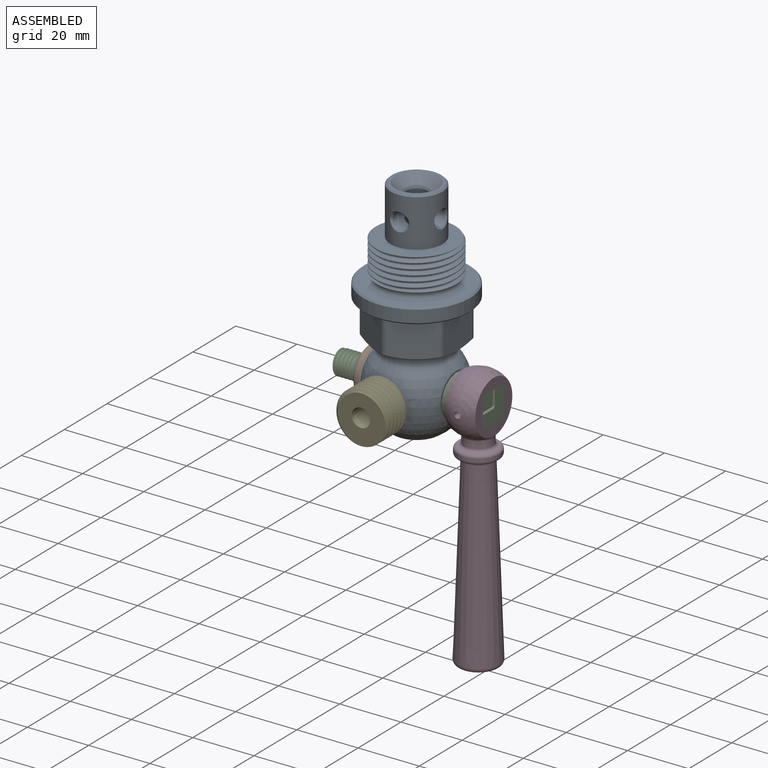
[diagram: assembled view]
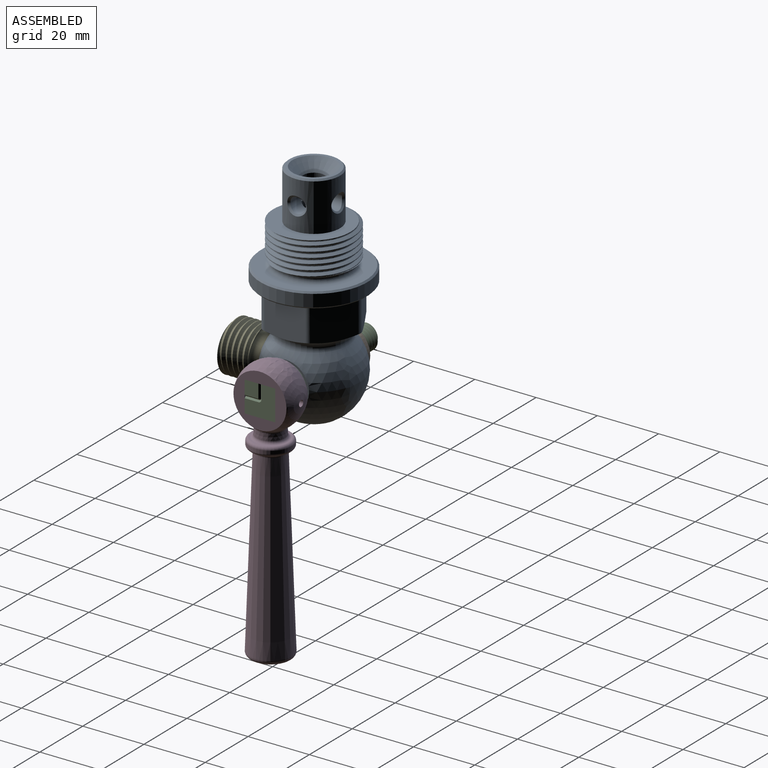
[diagram: assembled view, second angle]
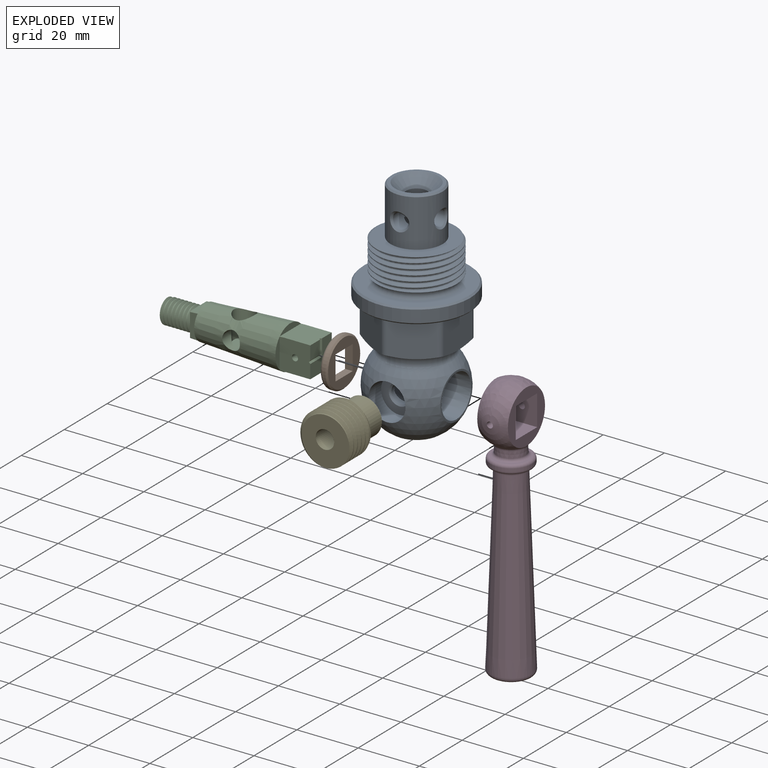
[diagram: exploded view]
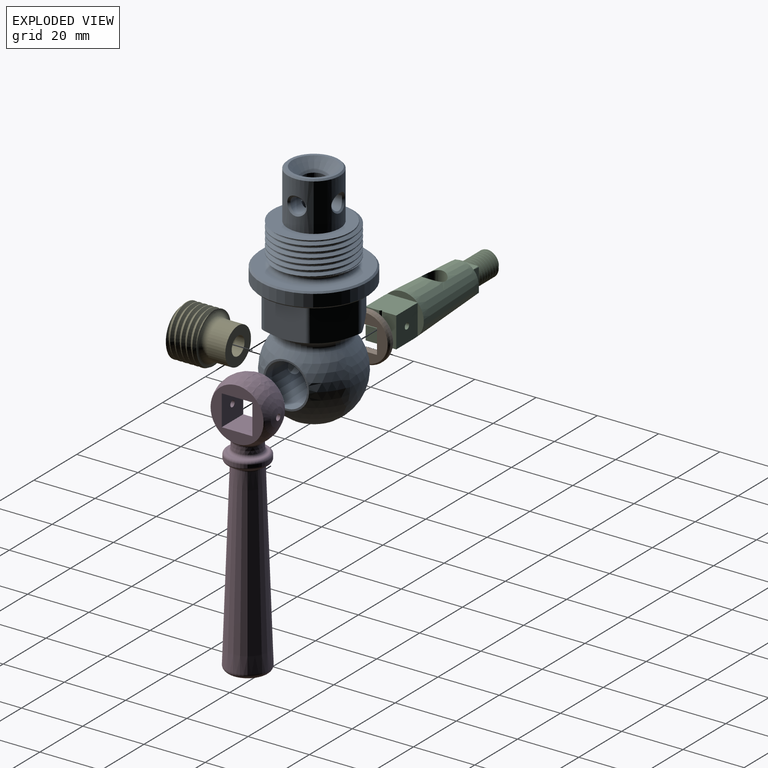
[diagram: exploded view, second angle]
ASSEMBLY  parts=5 mates=5
PART A: 59 faces, bbox 35.8x35.8x75.4 mm
  f0: cylinder r=3.5mm len=45.2mm, axis (0,0,1), area 990.9mm2, adj f5,f40,f41,f42,f43
  f1: cylinder r=3.5mm len=7mm, axis (0,0,1), area 75.8mm2, adj f40,f41,f42,f43,f44
  f2: cylinder r=8.5mm len=17mm, axis (0,0,1), area 705.5mm2, adj f8,f45,f46,f47,f48,f49
  f3: cylinder r=3mm len=6mm, axis (0,1,0), area 32.3mm2, adj f5,f50
  f4: sphere r=15mm, area 1819.8mm2, adj f25,f36,f37,f38
  f5: cone r=5mm half-angle=2.9deg, axis (1,0,0), area 952.6mm2, adj f0,f3,f36,f37
  f6: cylinder r=13.15mm len=26.3mm, axis (0,0,1), area 116.7mm2, adj f8,f9,f27,f28
  f7: plane 16x16mm, normal (0,0,1), area 47.1mm2, adj f44,f45
  f8: plane 25.79x25.76mm, normal (0,0,1), area 270.7mm2, adj f2,f6,f26,f27,f28
  f9: torus R=13.15mm, axis (0,0,1), area 304.8mm2, adj f6,f10,f29
  f10: plane 34x34mm, normal (0,0,1), area 364.7mm2, adj f9,f52
  f11: cylinder r=17.5mm len=35mm, axis (0,0,1), area 439.8mm2, adj f51,f52
  f12: plane 34x34mm, normal (0,0,-1), area 277.9mm2, adj f13,f14,f15,f16,f17,f18,f51,f53
  f13: plane 12.77x12.27mm, normal (-0.5,-0.87,0), area 156.1mm2, adj f12,f20,f21,f32,f34,f53,f58
  f14: plane 12.77x12.27mm, normal (-0.5,0.87,0), area 156.1mm2, adj f12,f22,f23,f33,f35,f54,f55
  f15: plane 12.77x12.27mm, normal (0.5,0.87,0), area 156.1mm2, adj f12,f23,f24,f30,f35,f55,f56
  f16: plane 12.77x12.27mm, normal (0.5,-0.87,0), area 156.1mm2, adj f12,f19,f20,f31,f34,f57,f58
  f17: plane 14.05x12.77mm, normal (-1,0,0), area 156.1mm2, adj f12,f21,f22,f32,f33,f53,f54
  f18: plane 14.05x12.77mm, normal (1,0,0), area 156.1mm2, adj f12,f19,f24,f30,f31,f56,f57
  f19: plane 11.69x6.75mm, normal (0,0,-1), area 0.1mm2, adj f16,f18,f25,f31
  f20: plane 13.5x1.82mm, normal (0,0,-1), area 0.1mm2, adj f13,f16,f25,f34
  f21: plane 11.69x6.75mm, normal (0,0,-1), area 0.1mm2, adj f13,f17,f25,f32
  f22: plane 11.69x6.75mm, normal (0,0,-1), area 0.1mm2, adj f14,f17,f25,f33
  f23: plane 13.5x1.82mm, normal (0,0,-1), area 0.1mm2, adj f14,f15,f25,f35
  f24: plane 11.69x6.75mm, normal (0,0,-1), area 0.1mm2, adj f15,f18,f25,f30
  f25: torus R=13.5mm, axis (0,0,1), area 415.1mm2, adj f4,f19,f20,f21,f22,f23,f24
  f26: bspline ~28.1x24.34mm, area 223.7mm2, adj f8,f27,f28,f29
  f27: bspline ~30.37x26.3mm, area 522.5mm2, adj f6,f8,f26,f29
  f28: bspline ~30.37x26.3mm, area 522.2mm2, adj f6,f8,f26,f29
  f29: plane 26.84x26.84mm, normal (0,0,1), area 45.5mm2, adj f9,f26,f27,f28
  f30: cone r=15.59mm half-angle=64.3deg, axis (0,0,1), area 13.2mm2, adj f15,f18,f24,f56
  f31: cone r=15.59mm half-angle=64.3deg, axis (0,0,1), area 13.2mm2, adj f16,f18,f19,f57
  f32: cone r=15.59mm half-angle=64.3deg, axis (0,0,1), area 13.2mm2, adj f13,f17,f21,f53
  f33: cone r=15.59mm half-angle=64.3deg, axis (0,0,1), area 13.2mm2, adj f14,f17,f22,f54
  f34: cone r=15.59mm half-angle=64.3deg, axis (0,0,1), area 13.2mm2, adj f13,f16,f20,f58
  f35: cone r=15.59mm half-angle=64.3deg, axis (0,0,1), area 13.2mm2, adj f14,f15,f23,f55
  f36: plane 14.97x14.97mm, normal (1,0,0), area 26.4mm2, adj f4,f5
  f37: plane 14.97x14.97mm, normal (-1,0,0), area 77.4mm2, adj f4,f5
  f38: cylinder r=6mm len=12mm, axis (0,-1,0), area 216.6mm2, adj f4,f39
  f39: plane 12x12mm, normal (0,-1,0), area 74.6mm2, adj f38,f50
  f40: cylinder r=2.5mm len=5.53mm, axis (0,1,0), area 74.5mm2, adj f0,f1,f41,f42,f49
  f41: cylinder r=2.5mm len=5.53mm, axis (-1,0,0), area 74.5mm2, adj f0,f1,f40,f43,f48
  f42: cylinder r=2.5mm len=5.53mm, axis (-1,0,0), area 74.2mm2, adj f0,f1,f40,f43,f46
  f43: cylinder r=2.5mm len=5.53mm, axis (0,-1,0), area 74.5mm2, adj f0,f1,f41,f42,f47
  f44: cone r=3.5mm half-angle=45deg, axis (0,0,1), area 163.3mm2, adj f1,f7
  f45: cone r=8mm half-angle=45deg, axis (0,0,-1), area 36.7mm2, adj f2,f7
  f46: bspline ~6.38x6mm, area 13.7mm2, adj f2,f42
  f47: bspline ~6.38x6mm, area 13.7mm2, adj f2,f43
  f48: bspline ~6.38x6mm, area 13.7mm2, adj f2,f41
  f49: bspline ~6.38x6mm, area 13.7mm2, adj f2,f40
  f50: cone r=3mm half-angle=45deg, axis (0,-1,0), area 14.4mm2, adj f3,f39
  f51: cone r=17.5mm half-angle=45deg, axis (0,0,1), area 76.6mm2, adj f11,f12
  f52: cone r=17mm half-angle=45deg, axis (0,0,-1), area 76.6mm2, adj f10,f11
  f53: cylinder r=2mm len=11.26mm, axis (0,0,1), area 23.6mm2, adj f12,f13,f17,f32
  f54: cylinder r=2mm len=11.26mm, axis (0,0,1), area 23.6mm2, adj f12,f14,f17,f33
  f55: cylinder r=2mm len=11.26mm, axis (0,0,1), area 23.6mm2, adj f12,f14,f15,f35
  f56: cylinder r=2mm len=11.26mm, axis (0,0,1), area 23.6mm2, adj f12,f15,f18,f30
  f57: cylinder r=2mm len=11.26mm, axis (0,0,1), area 23.6mm2, adj f12,f16,f18,f31
  f58: cylinder r=2mm len=11.26mm, axis (0,0,1), area 23.6mm2, adj f12,f13,f16,f34
PART B: 9 faces, bbox 2.5x17.3x17.3 mm
  f0: plane 8x2.5mm, normal (0,1,0), area 20mm2, adj f1,f4,f5,f6
  f1: plane 8x2.5mm, normal (0,0,1), area 20mm2, adj f0,f2,f5,f6
  f2: plane 8x2.5mm, normal (0,-1,0), area 20mm2, adj f1,f4,f5,f6
  f3: cylinder r=8mm len=16mm, axis (1,0,0), area 50.3mm2, adj f7,f8
  f4: plane 8x2.5mm, normal (0,0,-1), area 20mm2, adj f0,f2,f5,f6
  f5: plane 14x14mm, normal (-1,0,0), area 89.9mm2, adj f0,f1,f2,f4,f8
  f6: plane 15x15mm, normal (1,0,0), area 112.7mm2, adj f0,f1,f2,f4,f7
  f7: cone r=8mm half-angle=45deg, axis (-1,0,0), area 34.4mm2, adj f3,f6
  f8: torus R=7mm, axis (-1,0,0), area 75.4mm2, adj f3,f5
PART C: 40 faces, bbox 50.9x14.5x14.5 mm
  f0: plane 10x10mm, normal (0,-1,0), area 96.5mm2, adj f1,f5,f16,f19,f21,f23,f33,f34
  f1: plane 10x10mm, normal (1,0,0), area 70mm2, adj f0,f19,f20,f21,f33,f35,f37
  f2: cylinder r=4mm len=10mm, axis (-1,0,0), area 53mm2, adj f6,f7,f31,f32
  f3: cylinder r=3mm len=8.4mm, axis (0,-1,0), area 69.3mm2, adj f4,f5,f24,f25
  f4: plane 1.78x0.14mm, normal (0,-1,0), area 0.2mm2, adj f3,f25
  f5: cone r=5mm half-angle=2.9deg, axis (1,0,0), area 1024.9mm2, adj f0,f3,f6,f8,f9,f10,f11,f12
  f6: plane 8.35x8.35mm, normal (-1,0,0), area 22.8mm2, adj f2,f5,f8,f10,f12,f14,f30,f31
  f7: plane 7.62x7.58mm, normal (-1,0,0), area 41.1mm2, adj f2,f30,f31,f32
  f8: plane 7.91x2.5mm, normal (0,0,-1), area 19.3mm2, adj f5,f6,f9
  f9: plane 7.91x1.63mm, normal (-1,0,0), area 8.9mm2, adj f5,f8
  f10: plane 7.91x2.5mm, normal (0,0,1), area 19.3mm2, adj f5,f6,f11
  f11: plane 7.91x1.63mm, normal (-1,0,0), area 8.9mm2, adj f5,f10
  f12: plane 7.91x2.5mm, normal (0,-1,0), area 19.3mm2, adj f5,f6,f13
  f13: plane 7.91x1.63mm, normal (-1,0,0), area 8.9mm2, adj f5,f12
  f14: plane 7.91x2.5mm, normal (0,1,0), area 19.3mm2, adj f5,f6,f15
  f15: plane 7.91x1.63mm, normal (-1,0,0), area 8.9mm2, adj f5,f14
  f16: plane 9.8x2mm, normal (1,0,0), area 13.5mm2, adj f0,f5
  f17: plane 9.8x2mm, normal (1,0,0), area 13.5mm2, adj f5,f19
  f18: plane 9.8x2mm, normal (1,0,0), area 13.5mm2, adj f5,f20
  f19: plane 10x10mm, normal (0,0,1), area 99.6mm2, adj f0,f1,f5,f17,f20,f23,f37,f38
  f20: plane 10x10mm, normal (0,1,0), area 96.7mm2, adj f1,f5,f18,f19,f21,f39
  f21: plane 10x10mm, normal (0,0,-1), area 99.9mm2, adj f0,f1,f5,f20,f22
  f22: plane 9.8x2mm, normal (1,0,0), area 13.5mm2, adj f5,f21
  f23: plane 4.5x4.5mm, normal (1,0,0), area 20.3mm2, adj f0,f19,f34,f38
  f24: cylinder r=3.5mm len=9.29mm, axis (0,0,1), area 156.9mm2, adj f3,f5,f25,f26,f27,f28,f29
  f25: plane 7x6.88mm, normal (0,0,1), area 28.7mm2, adj f3,f4,f24
  f26: plane 1.73x0.13mm, normal (0,-1,0), area 0.1mm2, adj f24,f27
  f27: cylinder r=3mm len=1.73mm, axis (0,-1,0), area 0mm2, adj f24,f26
  f28: plane 1.73x0.13mm, normal (0,-1,0), area 0.1mm2, adj f24,f29
  f29: cylinder r=3mm len=1.73mm, axis (0,-1,0), area 0mm2, adj f24,f28
  f30: bspline ~10.94x7.68mm, area 57.6mm2, adj f6,f7,f31,f32
  f31: bspline ~11.02x9.24mm, area 143.8mm2, adj f2,f6,f7,f30
  f32: bspline ~10.81x9.24mm, area 144.2mm2, adj f2,f6,f7,f30
  f33: plane 4.5x0.5mm, normal (0.71,0,0.71), area 3.2mm2, adj f0,f1,f34,f35
  f34: plane 4.5x0.5mm, normal (0.71,0,-0.71), area 3.2mm2, adj f0,f23,f33,f36
  f35: cone r=1mm half-angle=45deg, axis (1,0,0), area 0.8mm2, adj f1,f33,f36,f37
  f36: cone r=0.5mm half-angle=45deg, axis (-1,0,0), area 0.3mm2, adj f34,f35,f38
  f37: plane 4.5x0.5mm, normal (0.71,-0.71,0), area 3.2mm2, adj f1,f19,f35,f38
  f38: plane 4.5x0.5mm, normal (0.71,0.71,0), area 3.2mm2, adj f19,f23,f36,f37
  f39: cylinder r=1mm len=10mm, axis (0,-1,0), area 62.8mm2, adj f0,f20
PART D: 23 faces, bbox 20x19.9x87 mm
  f0: sphere r=10mm, area 535mm2, adj f1,f6,f18,f19,f21,f22
  f1: plane 17.33x17.33mm, normal (1,0,0), area 135.6mm2, adj f0,f2,f3,f4,f5,f20
  f2: plane 10x10mm, normal (0,0,-1), area 100mm2, adj f1,f3,f5,f6
  f3: plane 10x10mm, normal (0,1,0), area 96.9mm2, adj f1,f2,f4,f6,f22
  f4: plane 10x10mm, normal (0,0,1), area 100mm2, adj f1,f3,f5,f6
  f5: plane 10x10mm, normal (0,-1,0), area 96.9mm2, adj f1,f2,f4,f6,f21
  f6: plane 17.33x17.33mm, normal (-1,0,0), area 135.6mm2, adj f0,f2,f3,f4,f5,f17
  f7: cylinder r=6.81mm len=13.62mm, axis (0,0,1), area 42.8mm2, adj f14,f16
  f8: torus R=5.84mm, axis (0,0,1), area 51.8mm2, adj f9,f14
  f9: cone r=6.94mm half-angle=2deg, axis (0,0,-1), area 2183.3mm2, adj f8,f10
  f10: torus R=5.45mm, axis (0,0,1), area 97.1mm2, adj f9,f11
  f11: plane 10.89x10.89mm, normal (0,0,-1), area 93.2mm2, adj f10
  f12: cone r=4.7mm half-angle=2deg, axis (0,0,-1), area 59.1mm2, adj f15,f17,f18,f19,f20
  f13: plane 11.62x11.62mm, normal (0,0,1), area 5.1mm2, adj f15,f16
  f14: torus R=5.81mm, axis (0,0,-1), area 62.9mm2, adj f7,f8
  f15: torus R=5.67mm, axis (0,0,-1), area 48.6mm2, adj f12,f13
  f16: torus R=5.81mm, axis (0,0,-1), area 63.6mm2, adj f7,f13
  f17: bspline ~1.85x0.9mm, area 1.7mm2, adj f6,f12,f18,f19
  f18: torus R=5.59mm, axis (0,0,1), area 14.2mm2, adj f0,f12,f17,f20
  f19: torus R=5.59mm, axis (0,0,1), area 14.2mm2, adj f0,f12,f17,f20
  f20: bspline ~1.85x0.9mm, area 1.7mm2, adj f1,f12,f18,f19
  f21: cylinder r=1mm len=4.95mm, axis (0,-1,0), area 31.1mm2, adj f0,f5
  f22: cylinder r=1mm len=4.95mm, axis (0,-1,0), area 31.1mm2, adj f0,f3
PART E: 11 faces, bbox 19.8x19.3x17.8 mm
  f0: cylinder r=3mm len=18mm, axis (0,1,0), area 339.3mm2, adj f2,f4
  f1: cylinder r=6mm len=12mm, axis (0,1,0), area 226.2mm2, adj f2,f6
  f2: plane 12x12mm, normal (0,1,0), area 84.8mm2, adj f0,f1
  f3: cylinder r=8.35mm len=16.7mm, axis (0,1,0), area 57.8mm2, adj f4,f5,f8,f9
  f4: plane 16.13x16.06mm, normal (0,-1,0), area 162.4mm2, adj f0,f3,f7,f8,f9
  f5: plane 13.14x7.75mm, normal (0,1,0), area 4.3mm2, adj f3,f6,f8,f9
  f6: torus R=8mm, axis (0,-1,0), area 132.8mm2, adj f1,f5,f10
  f7: bspline ~17.02x14.74mm, area 128.5mm2, adj f4,f8,f9,f10
  f8: bspline ~19.28x16.7mm, area 308.9mm2, adj f3,f4,f5,f7,f10
  f9: bspline ~19.28x16.7mm, area 309mm2, adj f3,f4,f5,f7,f10
  f10: plane 16.25x14.41mm, normal (0,-1,0), area 14.6mm2, adj f6,f7,f8,f9
PLACE A t=(-21.71,18.31,-10.03)mm
PLACE B t=(-21.71,18.31,-10.03)mm
PLACE C t=(-21.51,18.31,-10.03)mm
PLACE D t=(-21.51,18.31,-10.03)mm
PLACE E t=(-21.71,18.31,-10.04)mm
MATE revolute A.f5 <-> C.f2  axis (1,0,0) through (-8.71,18.31,-26.17)mm
MATE planar C.f14 <-> B.f2  axis (0,1,0) through (-35.25,22.31,-26.17)mm
MATE fastened C.f2 <-> D.f6  axis (1,0,0) through (-6.51,18.31,-26.17)mm
MATE fastened A.f38 <-> E.f0  axis (0,-1,0) through (-21.71,10.31,-26.17)mm
MATE planar A.f37 <-> B.f3  axis (-1,0,0) through (-34.71,18.31,-26.16)mm
